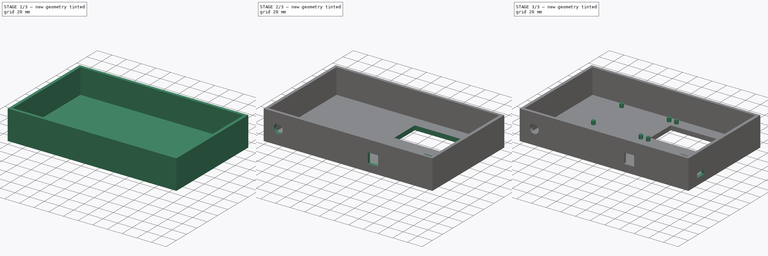
[diagram: build sequence overview — one tinted view per stage of 3, left to right]
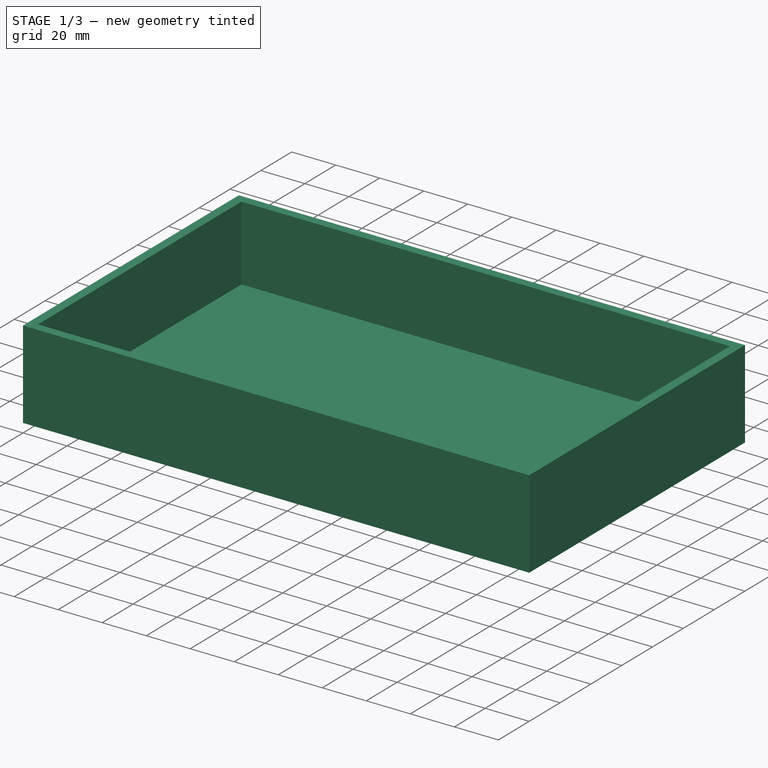
[diagram: stage 1 of 3 — iso view after this stage's code; geometry added in this stage tinted green]
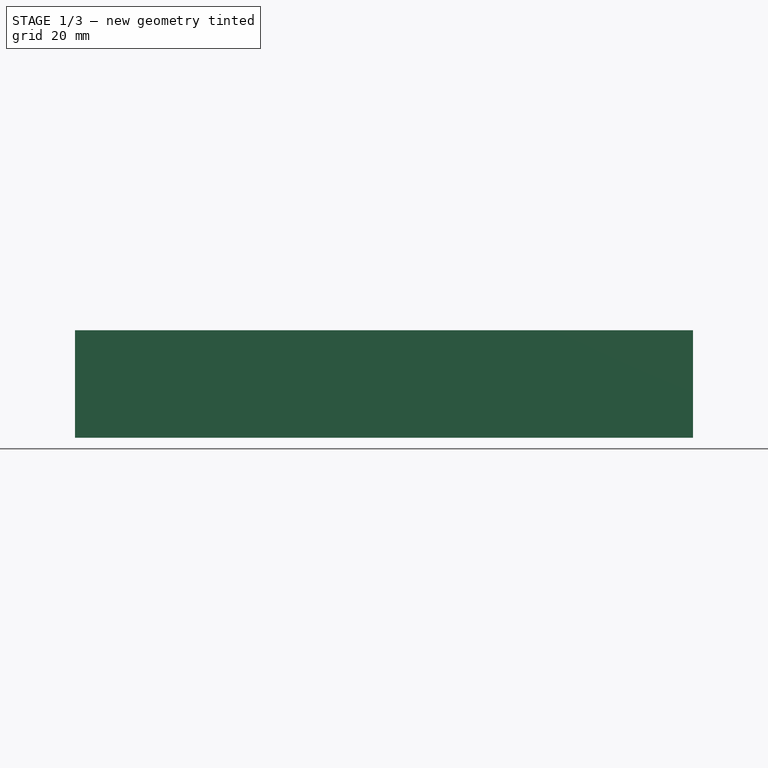
[diagram: stage 1 of 3 — front view after this stage's code; geometry added in this stage tinted green]
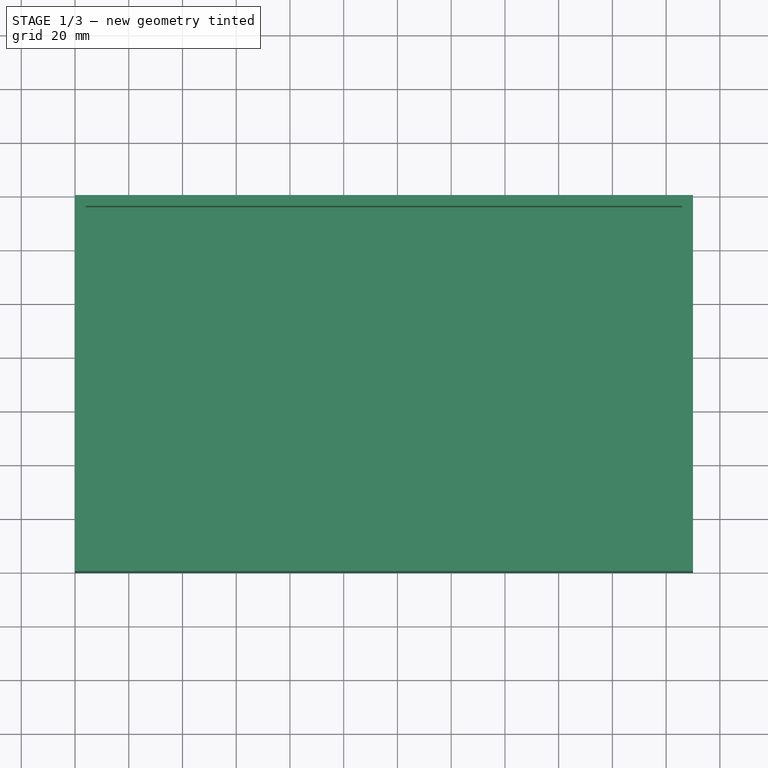
[diagram: stage 1 of 3 — top view after this stage's code; geometry added in this stage tinted green]
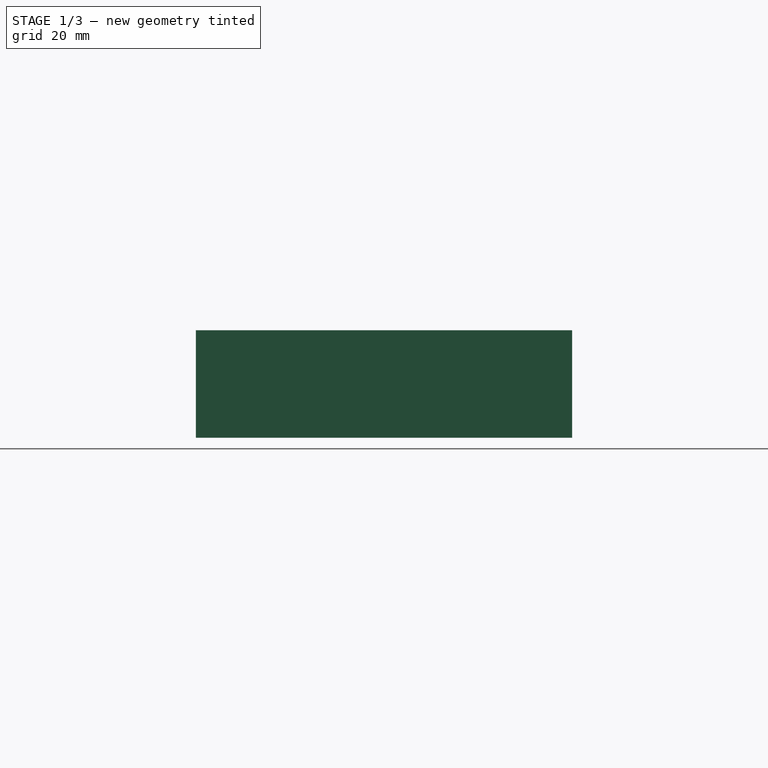
[diagram: stage 1 of 3 — right view after this stage's code; geometry added in this stage tinted green]
FCSTD DOCUMENT  (FreeCAD 0.21R33771 (Git))
Label: Box2
License: All rights reserved
LicenseURL: http://en.wikipedia.org/wiki/All_rights_reserved
objects: Sketcher::SketchObject×6, PartDesign::Pocket×4, PartDesign::Pad×2, PartDesign::Body×1
note: 19 computed .brp shape members not serialized (recipe doc carries the construction recipe); baked Part::Feature solids carry a one-line shape summary decoded from their .brp

FEATURE [Sketcher::SketchObject] Sketch  label="Box_Out"
  FullyConstrained = true
  MapMode = 5
  Support = -> [XY_Plane]
  sketch-geometry (4):
    g0: LineSegment StartX=0 StartY=0 StartZ=0 EndX=230 EndY=0 EndZ=0
    g1: LineSegment StartX=230 StartY=0 StartZ=0 EndX=230 EndY=140 EndZ=0
    g2: LineSegment StartX=230 StartY=140 StartZ=0 EndX=0 EndY=140 EndZ=0
    g3: LineSegment StartX=0 StartY=140 StartZ=0 EndX=0 EndY=0 EndZ=0
  constraints (11):
    c: Coincident(g0,g1)
    c: Coincident(g1,g2)
    c: Coincident(g2,g3)
    c: Coincident(g3,g0)
    c: Horizontal(g0)
    c: Horizontal(g2)
    c: Vertical(g1)
    c: Vertical(g3)
    c: Coincident(g0,g-1)
    c: DistanceX(g0,g0) = 230
    c: DistanceY(g0,g1) = 140
FEATURE [PartDesign::Pad] Pad
  Direction = (0,0,1)
  Length = 40
  Length2 = 10
  Profile = -> Sketch
  ReferenceAxis = -> Sketch [N_Axis]
  Type = 0
FEATURE [Sketcher::SketchObject] Sketch001  label="BoxPocket"
  ExternalGeometry = -> [Pad]
  FullyConstrained = true
  MapMode = 5
  Placement = pos=(0,0,40) rot=(0,0,1;0rad)
  Support = -> [Pad]
  sketch-geometry (4):
    g0: LineSegment StartX=4 StartY=136 StartZ=0 EndX=226 EndY=136 EndZ=0
    g1: LineSegment StartX=226 StartY=136 StartZ=0 EndX=226 EndY=4 EndZ=0
    g2: LineSegment StartX=226 StartY=4 StartZ=0 EndX=4 EndY=4 EndZ=0
    g3: LineSegment StartX=4 StartY=4 StartZ=0 EndX=4 EndY=136 EndZ=0
  constraints (12):
    c: Coincident(g0,g1)
    c: Coincident(g1,g2)
    c: Coincident(g2,g3)
    c: Coincident(g3,g0)
    c: Horizontal(g0)
    c: Horizontal(g2)
    c: Vertical(g1)
    c: Vertical(g3)
    c: DistanceX(g-4,g0) = 4
    c: DistanceY(g0,g-4) = 4
    c: DistanceY(g-4,g2) = 4
    c: DistanceX(g0,g-5) = 4
FEATURE [PartDesign::Pocket] Pocket
  BaseFeature = -> Pad
  Direction = (0,0,-1)
  Length = 34
  Length2 = 5
  Profile = -> Sketch001
  ReferenceAxis = -> Sketch001 [N_Axis]
  Type = 0
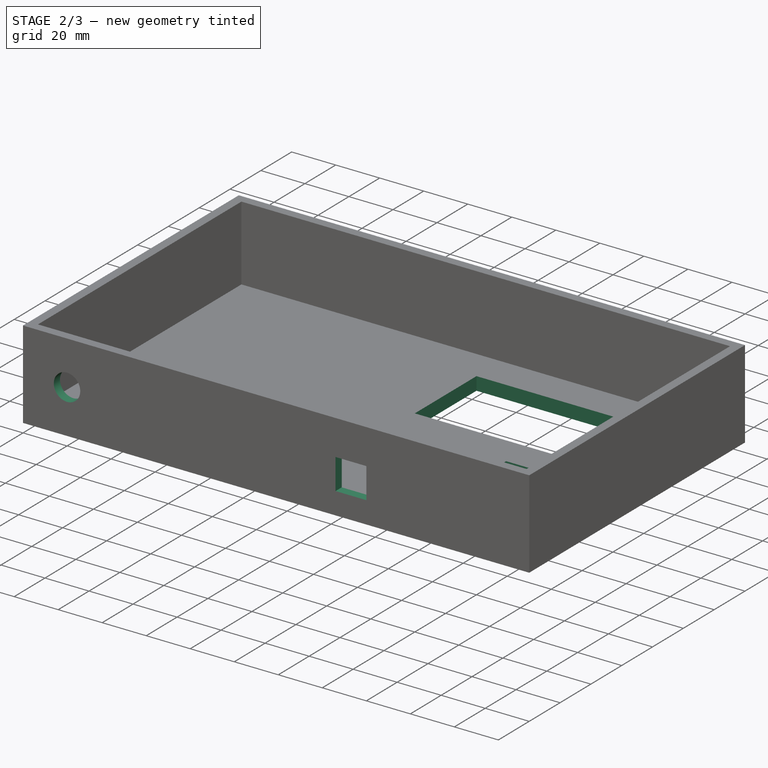
[diagram: stage 2 of 3 — iso view after this stage's code; geometry added in this stage tinted green]
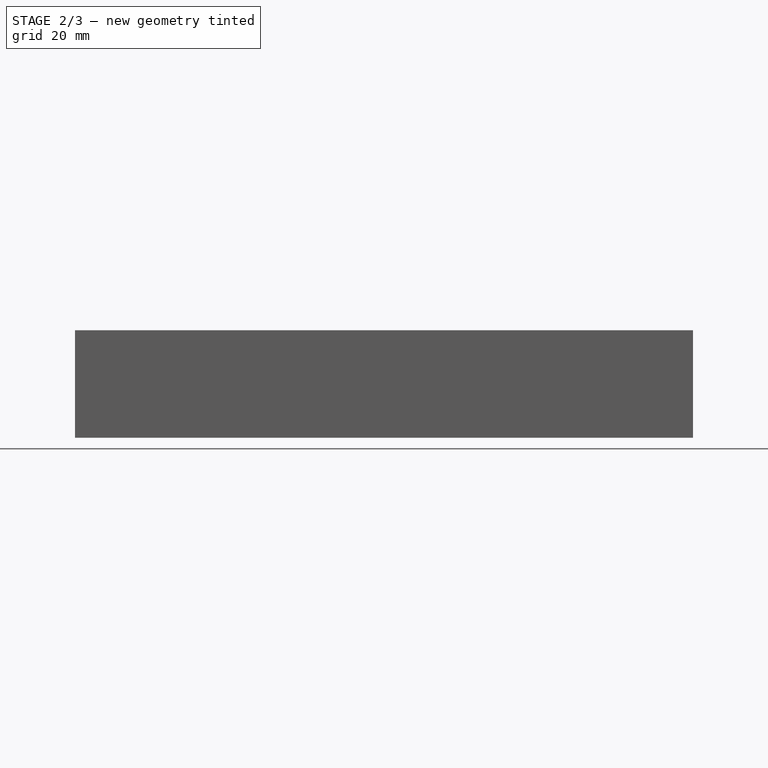
[diagram: stage 2 of 3 — front view after this stage's code; geometry added in this stage tinted green]
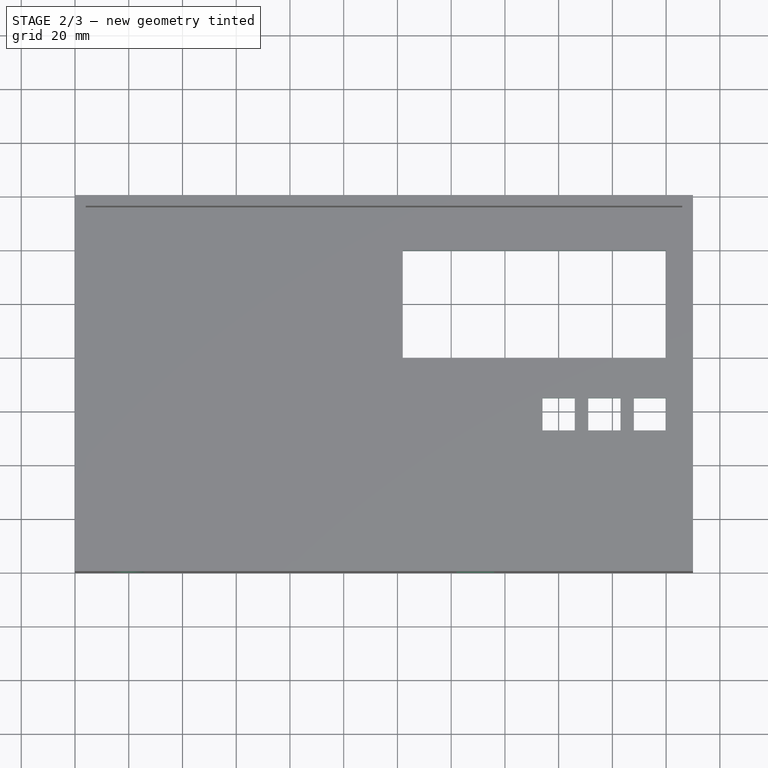
[diagram: stage 2 of 3 — top view after this stage's code; geometry added in this stage tinted green]
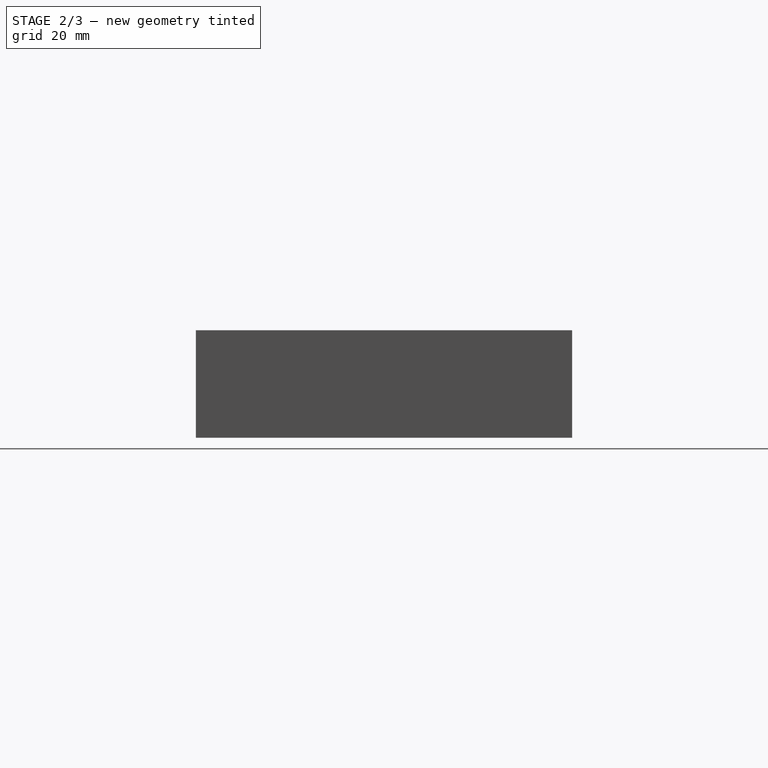
[diagram: stage 2 of 3 — right view after this stage's code; geometry added in this stage tinted green]
FEATURE [Sketcher::SketchObject] Sketch002  label="LCD Buttons"
  ExternalGeometry = -> [Pocket]
  FullyConstrained = true
  MapMode = 5
  Placement = pos=(0,0,6) rot=(0,0,1;0rad)
  Support = -> [Pocket]
  sketch-geometry (16):
    g0: LineSegment StartX=122 StartY=120 StartZ=0 EndX=220 EndY=120 EndZ=0
    g1: LineSegment StartX=220 StartY=120 StartZ=0 EndX=220 EndY=80 EndZ=0
    g2: LineSegment StartX=220 StartY=80 StartZ=0 EndX=122 EndY=80 EndZ=0
    g3: LineSegment StartX=122 StartY=80 StartZ=0 EndX=122 EndY=120 EndZ=0
    g4: LineSegment StartX=174 StartY=65 StartZ=0 EndX=186 EndY=65 EndZ=0
    g5: LineSegment StartX=186 StartY=65 StartZ=0 EndX=186 EndY=53 EndZ=0
    g6: LineSegment StartX=186 StartY=53 StartZ=0 EndX=174 EndY=53 EndZ=0
    g7: LineSegment StartX=174 StartY=53 StartZ=0 EndX=174 EndY=65 EndZ=0
    g8: LineSegment StartX=203 StartY=65 StartZ=0 EndX=203 EndY=53 EndZ=0
    g9: LineSegment StartX=191 StartY=65 StartZ=0 EndX=203 EndY=65 EndZ=0
    g10: LineSegment StartX=203 StartY=53 StartZ=0 EndX=191 EndY=53 EndZ=0
    g11: LineSegment StartX=191 StartY=53 StartZ=0 EndX=191 EndY=65 EndZ=0
    g12: LineSegment StartX=220 StartY=53 StartZ=0 EndX=208 EndY=53 EndZ=0
    g13: LineSegment StartX=208 StartY=53 StartZ=0 EndX=208 EndY=65 EndZ=0
    g14: LineSegment StartX=208 StartY=65 StartZ=0 EndX=220 EndY=65 EndZ=0
    g15: LineSegment StartX=220 StartY=65 StartZ=0 EndX=220 EndY=53 EndZ=0
  constraints (48):
    c: Coincident(g0,g1)
    c: Coincident(g1,g2)
    c: Coincident(g2,g3)
    c: Coincident(g3,g0)
    c: Horizontal(g0)
    c: Horizontal(g2)
    c: Vertical(g1)
    c: Vertical(g3)
    c: DistanceX(g0,g0) = 98
    c: DistanceY(g2,g0) = 40
    c: Coincident(g4,g5)
    c: Coincident(g5,g6)
    c: Coincident(g6,g7)
    c: Coincident(g7,g4)
    c: Horizontal(g4)
    c: Horizontal(g6)
    c: Vertical(g5)
    c: Vertical(g7)
    c: DistanceX(g6,g6) = 12
    c: DistanceY(g6,g4) = 12
    c: DistanceY(g4,g2) = 15
    c: Coincident(g9,g8)
    c: Coincident(g8,g10)
    c: Coincident(g10,g11)
    c: Coincident(g11,g9)
    c: Horizontal(g9)
    c: Horizontal(g10)
    c: Vertical(g8)
    c: Vertical(g11)
    c: Equal(g6,g10) = 12
    c: DistanceY(g10,g9) = 12
    c: DistanceY(g4,g9) = 0
    c: DistanceX(g4,g9) = 5
    c: Coincident(g14,g15)
    c: Coincident(g15,g12)
    c: Coincident(g12,g13)
    c: Coincident(g13,g14)
    c: Horizontal(g14)
    c: Horizontal(g12)
    c: Vertical(g15)
    c: Vertical(g13)
    c: DistanceY(g12,g14) = 12
    c: DistanceY(g13,g8) = 0
    c: DistanceX(g8,g13) = 5
    c: DistanceX(g12,g12) = 12
    c: DistanceX(g0,g-3) = 10
    c: DistanceY(g0,g-3) = 20
    c: DistanceX(g14,g-3) = 10
FEATURE [PartDesign::Pocket] Pocket001
  BaseFeature = -> Pocket
  Direction = (0,0,-1)
  Length = 5
  Length2 = 5
  Profile = -> Sketch002
  ReferenceAxis = -> Sketch002 [N_Axis]
  Type = 1
FEATURE [Sketcher::SketchObject] Sketch003  label="UsbHole"
  FullyConstrained = true
  MapMode = 5
  Placement = pos=(230,0,0) rot=(0.57735,0.57735,0.57735;2.0944rad)
  Support = -> [Pocket001]
  sketch-geometry (4):
    g0: LineSegment StartX=17 StartY=15 StartZ=0 EndX=31 EndY=15 EndZ=0
    g1: LineSegment StartX=31 StartY=15 StartZ=0 EndX=31 EndY=9 EndZ=0
    g2: LineSegment StartX=31 StartY=9 StartZ=0 EndX=17 EndY=9 EndZ=0
    g3: LineSegment StartX=17 StartY=9 StartZ=0 EndX=17 EndY=15 EndZ=0
  constraints (12):
    c: Coincident(g0,g1)
    c: Coincident(g1,g2)
    c: Coincident(g2,g3)
    c: Coincident(g3,g0)
    c: Horizontal(g0)
    c: Horizontal(g2)
    c: Vertical(g1)
    c: Vertical(g3)
    c: DistanceX(g0,g0) = 14
    c: DistanceY(g1,g1) = 6
    c: DistanceX(g-1,g2) = 17
    c: DistanceY(g-1,g2) = 9
FEATURE [Sketcher::SketchObject] Sketch004  label="PH Hole"
  ExternalGeometry = -> [Pocket001]
  FullyConstrained = true
  MapMode = 5
  Placement = pos=(0,0,0) rot=(1,0,0;1.5708rad)
  Support = -> [Pocket001]
  sketch-geometry (5):
    g0: LineSegment StartX=142 StartY=24 StartZ=0 EndX=156 EndY=24 EndZ=0
    g1: LineSegment StartX=156 StartY=24 StartZ=0 EndX=156 EndY=10 EndZ=0
    g2: LineSegment StartX=156 StartY=10 StartZ=0 EndX=142 EndY=10 EndZ=0
    g3: LineSegment StartX=142 StartY=10 StartZ=0 EndX=142 EndY=24 EndZ=0
    g4: Circle CenterX=20 CenterY=20 CenterZ=0 NormalX=0 NormalY=0 NormalZ=1 AngleXU=0 Radius=6
  constraints (15):
    c: Coincident(g0,g1)
    c: Coincident(g1,g2)
    c: Coincident(g2,g3)
    c: Coincident(g3,g0)
    c: Horizontal(g0)
    c: Horizontal(g2)
    c: Vertical(g1)
    c: Vertical(g3)
    c: DistanceY(g1,g1) = 14
    c: DistanceX(g2,g2) = 14
    c: DistanceX(g1,g-3) = 74
    c: DistanceY(g-3,g1) = 10
    c: Diameter(g4) = 12
    c: DistanceX(g-3,g4) = 20
    c: DistanceY(g-3,g4) = 20
FEATURE [PartDesign::Pocket] Pocket002
  BaseFeature = -> Pocket001
  Direction = (0,1,-2e-16)
  Length = 5
  Length2 = 5
  Profile = -> Sketch004
  ReferenceAxis = -> Sketch004 [N_Axis]
  Type = 2
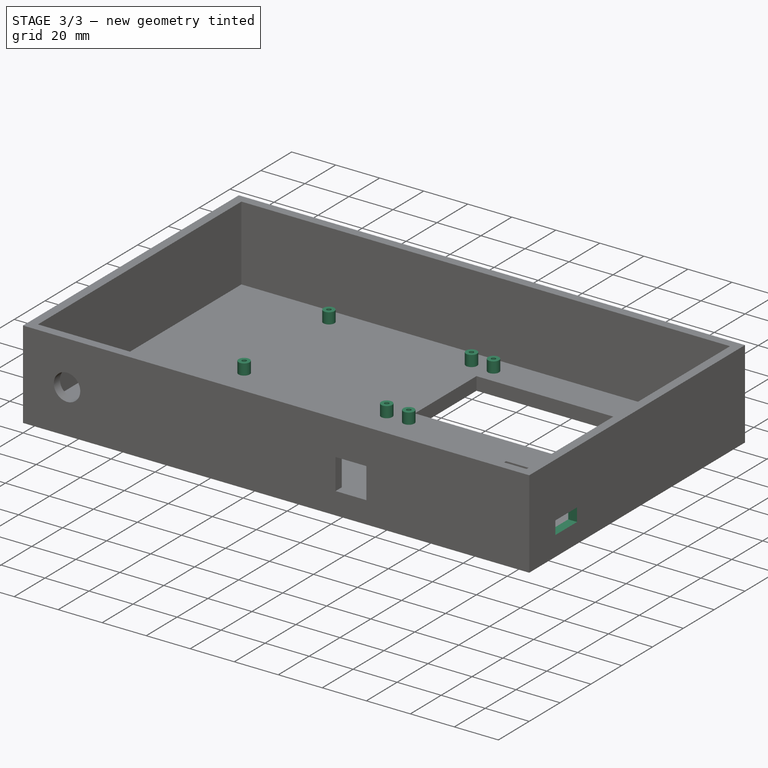
[diagram: stage 3 of 3 — iso view after this stage's code; geometry added in this stage tinted green]
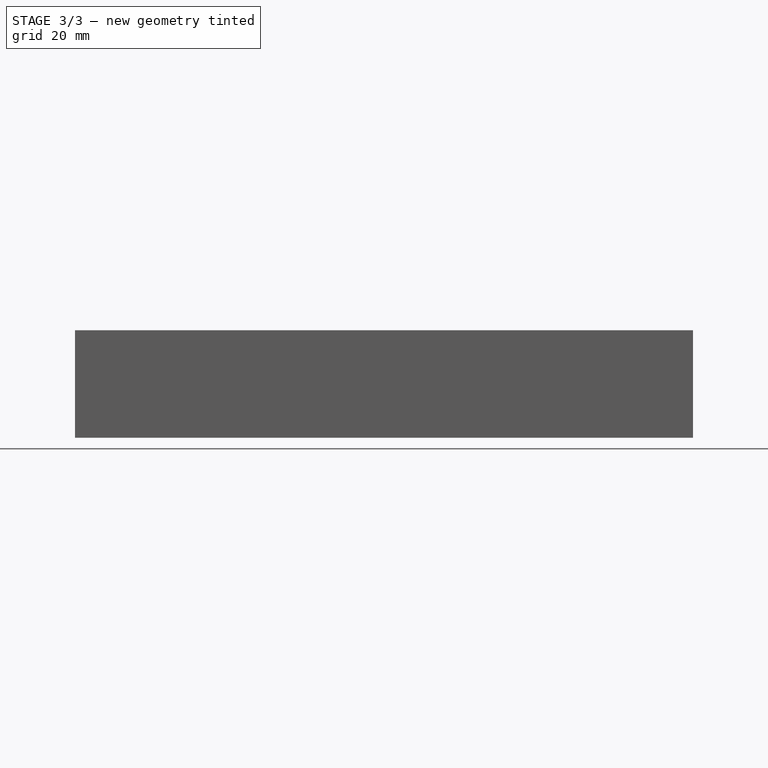
[diagram: stage 3 of 3 — front view after this stage's code; geometry added in this stage tinted green]
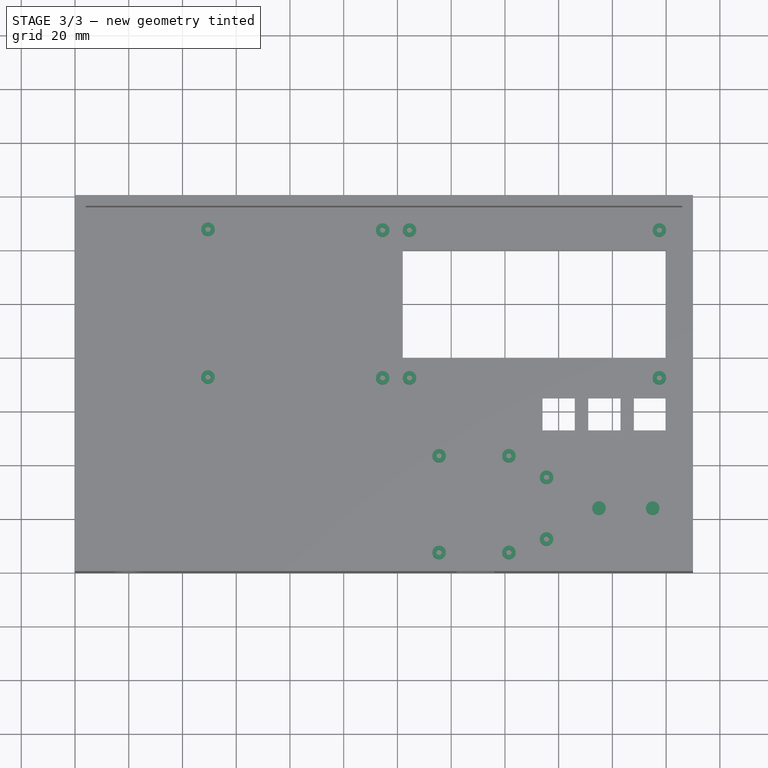
[diagram: stage 3 of 3 — top view after this stage's code; geometry added in this stage tinted green]
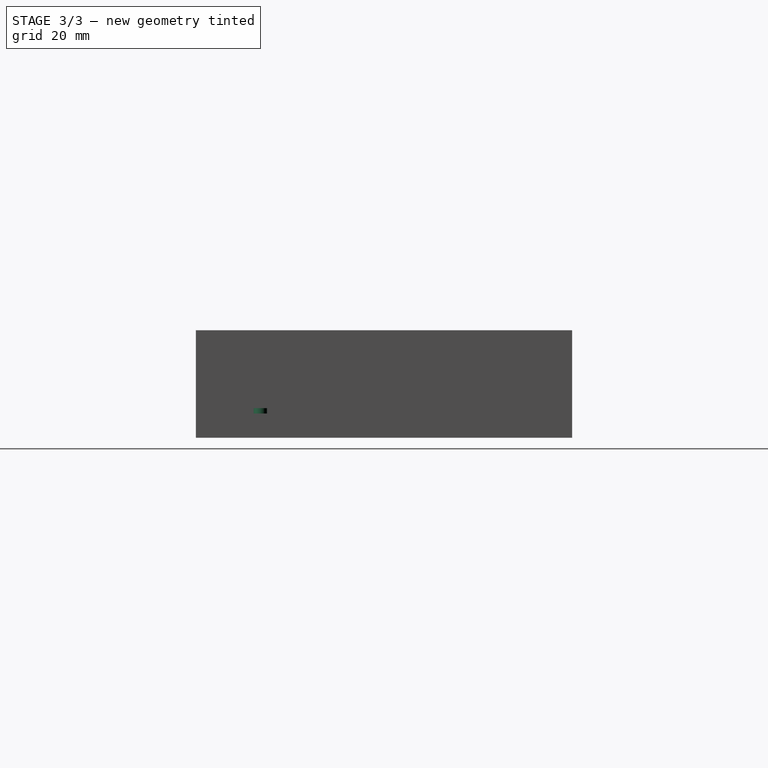
[diagram: stage 3 of 3 — right view after this stage's code; geometry added in this stage tinted green]
FEATURE [Sketcher::SketchObject] Sketch005  label="Bolce"
  ExternalGeometry = -> [Pocket002]
  FullyConstrained = true
  MapMode = 5
  Placement = pos=(0,0,6) rot=(0,0,1;0rad)
  Support = -> [Pocket002]
  sketch-geometry (30):
    g0: Circle CenterX=217.5 CenterY=127.5 CenterZ=0 NormalX=0 NormalY=0 NormalZ=1 AngleXU=0 Radius=2.5
    g1: Circle CenterX=217.5 CenterY=127.5 CenterZ=0 NormalX=0 NormalY=0 NormalZ=1 AngleXU=0 Radius=1
    g2: Circle CenterX=124.5 CenterY=127.5 CenterZ=0 NormalX=0 NormalY=0 NormalZ=1 AngleXU=0 Radius=2.5
    g3: Circle CenterX=124.5 CenterY=127.5 CenterZ=0 NormalX=0 NormalY=0 NormalZ=1 AngleXU=0 Radius=1
    g4: Circle CenterX=217.5 CenterY=72.5 CenterZ=0 NormalX=0 NormalY=0 NormalZ=1 AngleXU=0 Radius=2.5
    g5: Circle CenterX=217.5 CenterY=72.5 CenterZ=0 NormalX=0 NormalY=0 NormalZ=1 AngleXU=0 Radius=1
    g6: Circle CenterX=124.5 CenterY=72.5 CenterZ=0 NormalX=0 NormalY=0 NormalZ=1 AngleXU=0 Radius=2.5
    g7: Circle CenterX=124.5 CenterY=72.5 CenterZ=0 NormalX=0 NormalY=0 NormalZ=1 AngleXU=0 Radius=1
    g8: Circle CenterX=114.5 CenterY=127.5 CenterZ=0 NormalX=0 NormalY=0 NormalZ=1 AngleXU=0 Radius=2.5
    g9: Circle CenterX=114.5 CenterY=127.5 CenterZ=0 NormalX=0 NormalY=0 NormalZ=1 AngleXU=0 Radius=1
    g10: Circle CenterX=114.5 CenterY=72.5 CenterZ=0 NormalX=0 NormalY=0 NormalZ=1 AngleXU=0 Radius=2.5
    g11: Circle CenterX=114.5 CenterY=72.5 CenterZ=0 NormalX=0 NormalY=0 NormalZ=1 AngleXU=0 Radius=1
    g12: Circle CenterX=49.5 CenterY=127.8 CenterZ=0 NormalX=0 NormalY=0 NormalZ=1 AngleXU=0 Radius=2.5
    g13: Circle CenterX=49.5 CenterY=127.8 CenterZ=0 NormalX=0 NormalY=0 NormalZ=1 AngleXU=0 Radius=1
    g14: Circle CenterX=49.5 CenterY=72.8 CenterZ=0 NormalX=0 NormalY=0 NormalZ=1 AngleXU=0 Radius=2.5
    g15: Circle CenterX=49.5 CenterY=72.8 CenterZ=0 NormalX=0 NormalY=0 NormalZ=1 AngleXU=0 Radius=1
    g16: Circle CenterX=175.5 CenterY=35.5 CenterZ=0 NormalX=0 NormalY=0 NormalZ=1 AngleXU=0 Radius=2.5
    g17: Circle CenterX=175.5 CenterY=35.5 CenterZ=0 NormalX=0 NormalY=0 NormalZ=1 AngleXU=0 Radius=1
    g18: Circle CenterX=175.5 CenterY=12.5 CenterZ=0 NormalX=0 NormalY=0 NormalZ=1 AngleXU=0 Radius=2.5
    g19: Circle CenterX=175.5 CenterY=12.5 CenterZ=0 NormalX=0 NormalY=0 NormalZ=1 AngleXU=0 Radius=1
    g20: Circle CenterX=215 CenterY=24 CenterZ=0 NormalX=0 NormalY=0 NormalZ=1 AngleXU=0 Radius=2.5
    g21: Circle CenterX=195 CenterY=24 CenterZ=0 NormalX=0 NormalY=0 NormalZ=1 AngleXU=0 Radius=2.5
    g22: Circle CenterX=161.5 CenterY=7.5 CenterZ=0 NormalX=0 NormalY=0 NormalZ=1 AngleXU=0 Radius=2.5
    g23: Circle CenterX=161.5 CenterY=7.5 CenterZ=0 NormalX=0 NormalY=0 NormalZ=1 AngleXU=0 Radius=1
    g24: Circle CenterX=135.5 CenterY=7.5 CenterZ=0 NormalX=0 NormalY=0 NormalZ=1 AngleXU=0 Radius=2.5
    g25: Circle CenterX=135.5 CenterY=7.5 CenterZ=0 NormalX=0 NormalY=0 NormalZ=1 AngleXU=0 Radius=1
    g26: Circle CenterX=135.5 CenterY=43.5 CenterZ=0 NormalX=0 NormalY=0 NormalZ=1 AngleXU=0 Radius=2.5
    g27: Circle CenterX=135.5 CenterY=43.5 CenterZ=0 NormalX=0 NormalY=0 NormalZ=1 AngleXU=0 Radius=1
    g28: Circle CenterX=161.5 CenterY=43.5 CenterZ=0 NormalX=0 NormalY=0 NormalZ=1 AngleXU=0 Radius=2.5
    g29: Circle CenterX=161.5 CenterY=43.5 CenterZ=0 NormalX=0 NormalY=0 NormalZ=1 AngleXU=0 Radius=1
  constraints (77):
    c: Coincident(g1,g0)
    c: Diameter(g1) = 2
    c: Diameter(g0) = 5
    c: DistanceX(g0,g-3) = 12.5
    c: DistanceY(g0,g-3) = 12.5
    c: Coincident(g3,g2)
    c: Equal(g1,g3) = 2
    c: Equal(g0,g2) = 5
    c: DistanceY(g2,g-3) = 12.5
    c: DistanceX(g2,g0) = 93
    c: Coincident(g5,g4)
    c: Equal(g1,g5) = 2
    c: Equal(g0,g4) = 5
    c: DistanceX(g4,g-3) = 12.5
    c: DistanceY(g4,g0) = 55
    c: Coincident(g7,g6)
    c: DistanceX(g6,g4) = 93
    c: DistanceY(g6,g2) = 55
    c: Diameter(g6) = 5
    c: Diameter(g7) = 2
    c: Coincident(g9,g8)
    c: DistanceX(g8,g2) = 10
    c: DistanceY(g-3) = 140
    c: DistanceY(g8,g-3) = 12.5
    c: Diameter(g8) = 5
    c: Diameter(g9) = 2
    c: Coincident(g11,g10)
    c: Equal(g6,g10) = 5
    c: Equal(g7,g11) = 2
    c: DistanceX(g10,g6) = 10
    c: DistanceY(g10,g8) = 55
    c: Coincident(g13,g12)
    c: Equal(g8,g12) = 5
    c: Equal(g9,g13) = 2
    c: Coincident(g15,g14)
    c: DistanceX(g12,g8) = 65
    c: DistanceX(g14,g10) = 65
    c: DistanceY(g12,g-3) = 12.2
    c: DistanceY(g14,g12) = 55
    c: Diameter(g14) = 5
    c: Diameter(g15) = 2
    c: Coincident(g17,g16)
    c: Coincident(g19,g18)
    c: DistanceY(g-4,g18) = 12.5
    c: DistanceY(g18,g16) = 23
    c: DistanceX(g18,g-4) = 54.5
    c: Diameter(g18) = 5
    c: Diameter(g19) = 2
    c: Diameter(g16) = 5
    c: Diameter(g17) = 2
    c: DistanceX(g16,g-4) = 54.5
    c: DistanceY(g18,g21) = 11.5
    c: DistanceX(g21,g-4) = 35
    c: Diameter(g21) = 5
    c: Diameter(g20) = 5
    c: DistanceY(g20,g21) = 0
    c: DistanceX(g21,g20) = 20
    c: Coincident(g23,g22)
    c: Equal(g18,g22) = 5
    c: Equal(g19,g23) = 2
    c: DistanceY(g-4,g22) = 7.5
    c: DistanceX(g22,g-4) = 68.5
    c: Coincident(g25,g24)
    c: DistanceY(g24,g22) = 0
    c: DistanceX(g24,g22) = 26
    c: Diameter(g24) = 5
    c: Diameter(g25) = 2
    c: Coincident(g27,g26)
    c: Equal(g24,g26) = 5
    c: Equal(g25,g27) = 2
    c: DistanceX(g26,g24) = 0
    c: DistanceY(g24,g26) = 36
    c: Coincident(g29,g28)
    c: DistanceX(g26,g28) = 26
    c: DistanceY(g28,g26) = 0
    c: Diameter(g28) = 5
    c: Diameter(g29) = 2
FEATURE [PartDesign::Pocket] Pocket003
  BaseFeature = -> Pocket002
  Direction = (-1,0,0)
  Length = 5
  Length2 = 5
  Profile = -> Sketch003
  ReferenceAxis = -> Sketch003 [N_Axis]
  Type = 2
FEATURE [PartDesign::Pad] Pad001
  BaseFeature = -> Pocket003
  Direction = (0,0,1)
  Length = 5
  Length2 = 10
  Profile = -> Sketch005
  ReferenceAxis = -> Sketch005 [N_Axis]
  Type = 0
FEATURE [PartDesign::Body] Body
  Group = -> [Sketch,Pad,Sketch001,Pocket,Sketch002,Pocket001,Sketch003,Sketch004,Pocket002,Sketch005,Pocket003,Pad001]
  Origin = -> Origin
  Tip = -> Pad001
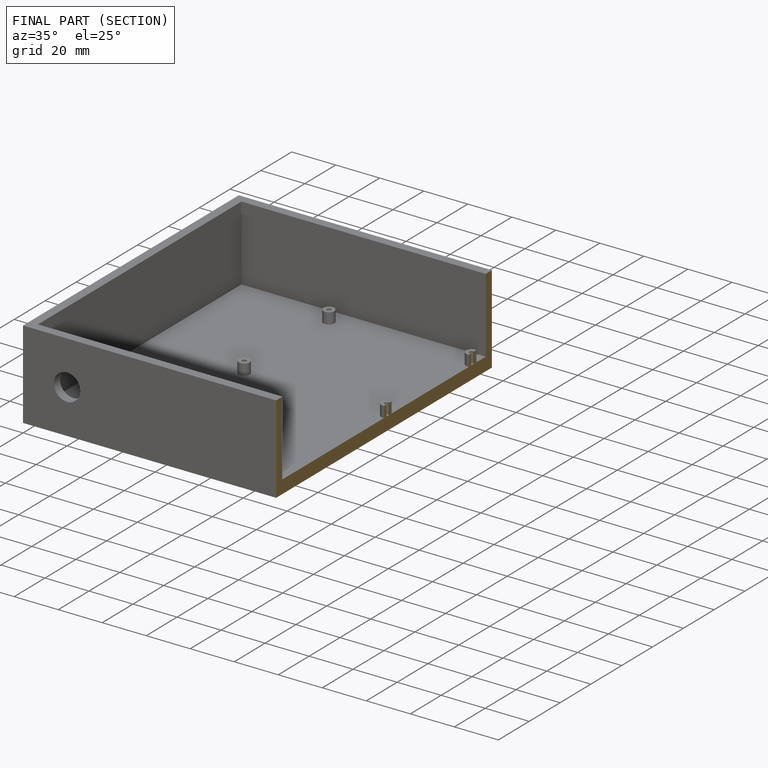
[diagram: finished part — half-section view (interior)]
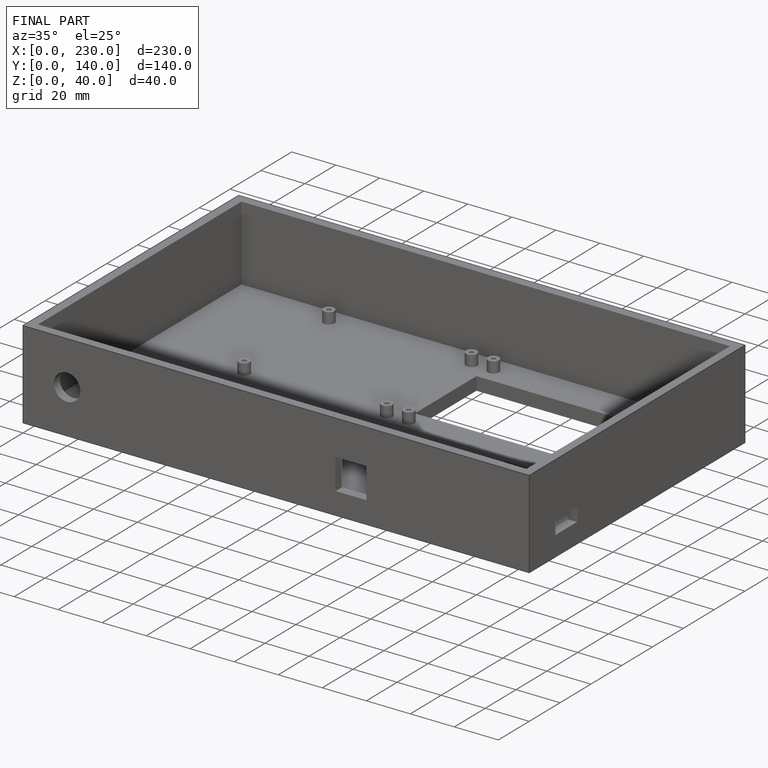
[diagram: finished part — iso view with bounding-box wireframe]
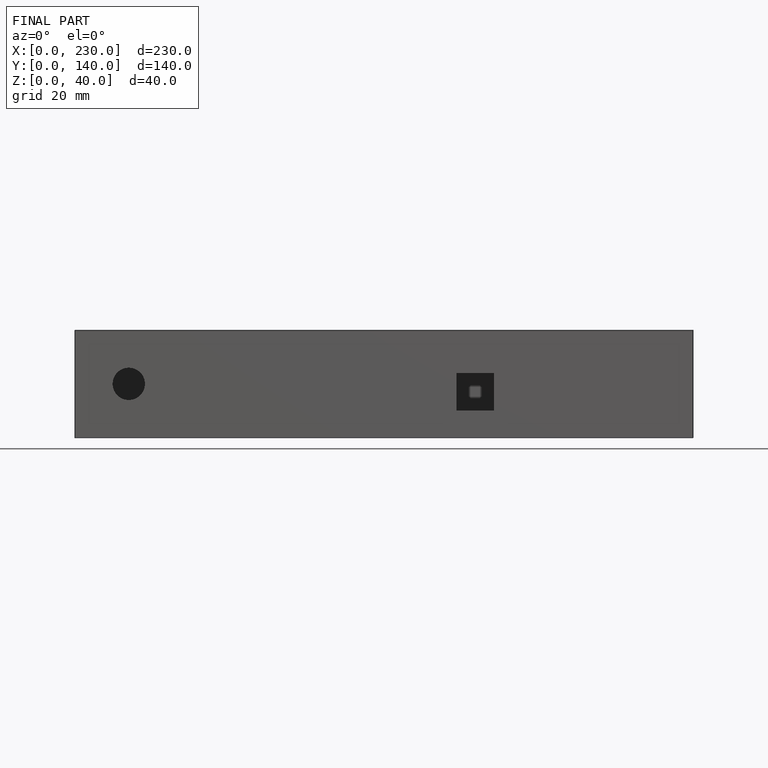
[diagram: finished part — front view with bounding-box wireframe]
